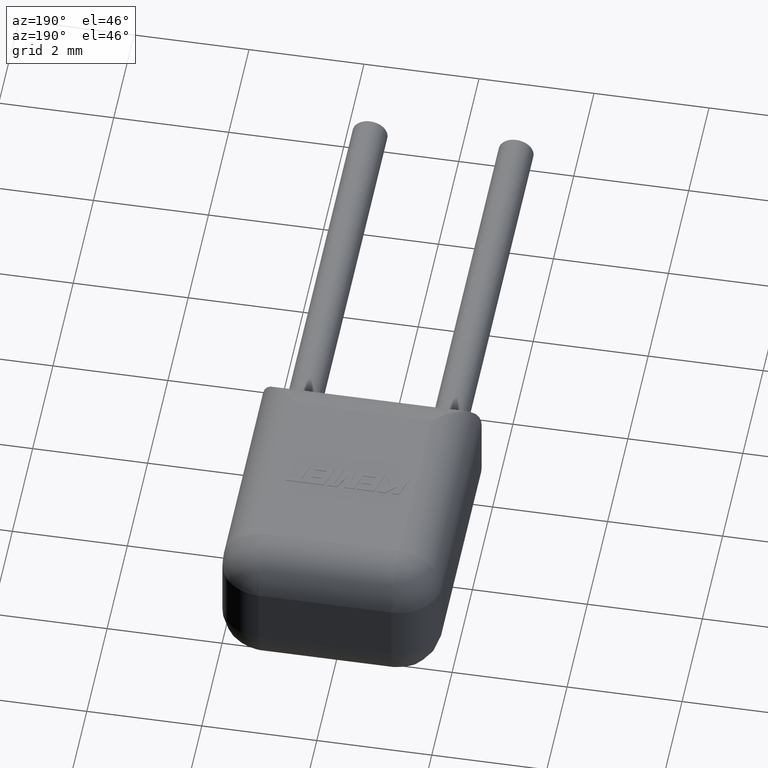
[diagram: clean part render]
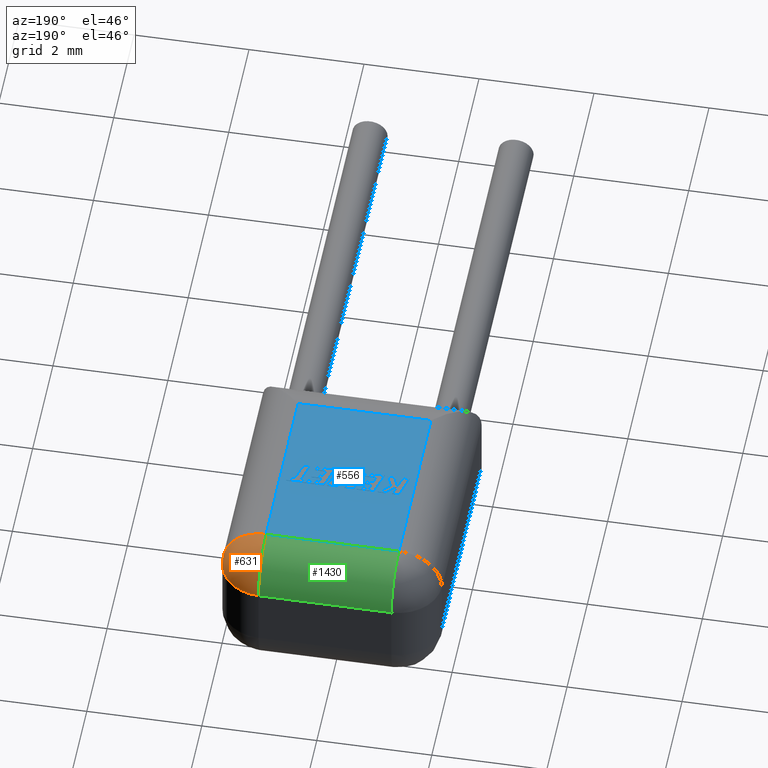
[diagram: same view with three faces highlighted in distinct colors, each labeled with its STEP entity id]
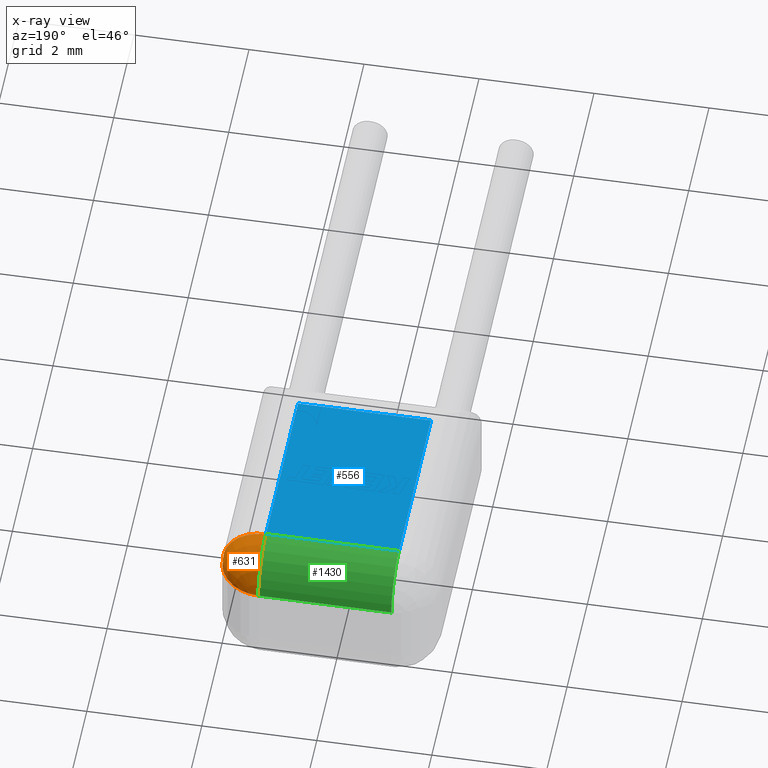
[diagram: x-ray of the same camera — body ghosted, the three highlighted faces saturated]
A machine part, auxiliary view with three faces highlighted in distinct colors.
The next image is the same camera in x-ray (body ghosted, the three faces saturated) — at least one of them is partly hidden behind the body in this view.
Their STEP definitions:

[orange] entity #631 — the highlighted spherical surface has radius 0.75 mm.
#24 = EDGE_LOOP ( 'NONE', ( #2051, #3359, #2685 ) ) ;
#150 = EDGE_CURVE ( 'NONE', #271, #2269, #672, .T. ) ;
#159 = DIRECTION ( 'NONE',  ( -0.0000000000000000000, -1.000000000000000000, -0.0000000000000000000 ) ) ;
#271 = VERTEX_POINT ( 'NONE', #2486 ) ;
#460 = DIRECTION ( 'NONE',  ( 0.0000000000000000000, 0.0000000000000000000, 1.000000000000000000 ) ) ;
#572 = CARTESIAN_POINT ( 'NONE',  ( 7.277648917456348200E-016, 3.910000000000000100, 1.790000000000000000 ) ) ;
#631 = ADVANCED_FACE ( 'NONE', ( #2159 ), #3385, .T. ) ;
#664 = DIRECTION ( 'NONE',  ( 1.000000000000000000, 0.0000000000000000000, 0.0000000000000000000 ) ) ;
#672 = CIRCLE ( 'NONE', #1963, 0.7500000000000000000 ) ;
#1232 = DIRECTION ( 'NONE',  ( 0.0000000000000000000, 1.000000000000000000, 0.0000000000000000000 ) ) ;
#1263 = CARTESIAN_POINT ( 'NONE',  ( -0.7499999999999988900, 3.910000000000000100, 1.790000000000000000 ) ) ;
#1486 = DIRECTION ( 'NONE',  ( 1.000000000000000000, 0.0000000000000000000, 0.0000000000000000000 ) ) ;
#1537 = CARTESIAN_POINT ( 'NONE',  ( -0.7499999999999992200, 3.910000000000000100, 2.540000000000000000 ) ) ;
#1963 = AXIS2_PLACEMENT_3D ( 'NONE', #1263, #2700, #2145 ) ;
#2030 = AXIS2_PLACEMENT_3D ( 'NONE', #2220, #159, #460 ) ;
#2042 = VERTEX_POINT ( 'NONE', #572 ) ;
#2051 = ORIENTED_EDGE ( 'NONE', *, *, #2146, .T. ) ;
#2134 = CARTESIAN_POINT ( 'NONE',  ( -0.7499999999999992200, 3.910000000000000100, 1.790000000000000000 ) ) ;
#2145 = DIRECTION ( 'NONE',  ( 4.336808689942017700E-016, 0.0000000000000000000, -1.000000000000000000 ) ) ;
#2146 = EDGE_CURVE ( 'NONE', #2042, #271, #3214, .T. ) ;
#2159 = FACE_OUTER_BOUND ( 'NONE', #24, .T. ) ;
#2220 = CARTESIAN_POINT ( 'NONE',  ( -0.7499999999999992200, 3.910000000000000100, 1.790000000000000000 ) ) ;
#2269 = VERTEX_POINT ( 'NONE', #1537 ) ;
#2362 = DIRECTION ( 'NONE',  ( 0.0000000000000000000, 0.0000000000000000000, 1.000000000000000000 ) ) ;
#2486 = CARTESIAN_POINT ( 'NONE',  ( -0.7499999999999988900, 4.660000000000000100, 1.790000000000000000 ) ) ;
#2685 = ORIENTED_EDGE ( 'NONE', *, *, #3528, .F. ) ;
#2700 = DIRECTION ( 'NONE',  ( 1.000000000000000000, -0.0000000000000000000, 4.336808689942017200E-016 ) ) ;
#3062 = CIRCLE ( 'NONE', #2030, 0.7500000000000000000 ) ;
#3214 = CIRCLE ( 'NONE', #3373, 0.7500000000000000000 ) ;
#3220 = CARTESIAN_POINT ( 'NONE',  ( -0.7499999999999992200, 3.910000000000000100, 1.790000000000000000 ) ) ;
#3359 = ORIENTED_EDGE ( 'NONE', *, *, #150, .T. ) ;
#3373 = AXIS2_PLACEMENT_3D ( 'NONE', #2134, #2362, #664 ) ;
#3385 = SPHERICAL_SURFACE ( 'NONE', #3502, 0.7500000000000000000 ) ;
#3502 = AXIS2_PLACEMENT_3D ( 'NONE', #3220, #1232, #1486 ) ;
#3528 = EDGE_CURVE ( 'NONE', #2042, #2269, #3062, .T. ) ;

[blue] entity #556 — the highlighted planar face has unit normal (0, 0, -1).
#136 = LINE ( 'NONE', #1112, #541 ) ;
#317 = EDGE_CURVE ( 'NONE', #2269, #2415, #1169, .T. ) ;
#474 = FACE_OUTER_BOUND ( 'NONE', #2770, .T. ) ;
#541 = VECTOR ( 'NONE', #1379, 1000.000000000000000 ) ;
#556 = ADVANCED_FACE ( 'NONE', ( #474 ), #2605, .F. ) ;
#604 = VERTEX_POINT ( 'NONE', #3698 ) ;
#941 = VECTOR ( 'NONE', #2491, 1000.000000000000000 ) ;
#1064 = AXIS2_PLACEMENT_3D ( 'NONE', #2001, #2871, #2896 ) ;
#1112 = CARTESIAN_POINT ( 'NONE',  ( -3.060000000000000100, 0.0000000000000000000, 2.540000000000000000 ) ) ;
#1136 = LINE ( 'NONE', #1873, #3313 ) ;
#1169 = LINE ( 'NONE', #1624, #1265 ) ;
#1265 = VECTOR ( 'NONE', #1868, 1000.000000000000000 ) ;
#1276 = CARTESIAN_POINT ( 'NONE',  ( -3.060000000000000100, 0.7499999999999996700, 2.540000000000000000 ) ) ;
#1375 = CARTESIAN_POINT ( 'NONE',  ( -0.7500000000000000000, 1.395968462427688200E-016, 2.540000000000000000 ) ) ;
#1379 = DIRECTION ( 'NONE',  ( 0.0000000000000000000, -1.000000000000000000, 0.0000000000000000000 ) ) ;
#1537 = CARTESIAN_POINT ( 'NONE',  ( -0.7499999999999992200, 3.910000000000000100, 2.540000000000000000 ) ) ;
#1624 = CARTESIAN_POINT ( 'NONE',  ( 0.0000000000000000000, 3.910000000000000100, 2.540000000000000000 ) ) ;
#1628 = CARTESIAN_POINT ( 'NONE',  ( -3.060000000000000100, 3.910000000000000100, 2.540000000000000000 ) ) ;
#1721 = EDGE_CURVE ( 'NONE', #2769, #604, #1136, .T. ) ;
#1868 = DIRECTION ( 'NONE',  ( -1.000000000000000000, 0.0000000000000000000, 0.0000000000000000000 ) ) ;
#1873 = CARTESIAN_POINT ( 'NONE',  ( -9.184850993605149700E-017, 0.7500000000000000000, 2.540000000000000000 ) ) ;
#1903 = ORIENTED_EDGE ( 'NONE', *, *, #317, .T. ) ;
#2001 = CARTESIAN_POINT ( 'NONE',  ( 0.0000000000000000000, 0.0000000000000000000, 2.540000000000000000 ) ) ;
#2269 = VERTEX_POINT ( 'NONE', #1537 ) ;
#2368 = ORIENTED_EDGE ( 'NONE', *, *, #3600, .T. ) ;
#2415 = VERTEX_POINT ( 'NONE', #1628 ) ;
#2425 = ORIENTED_EDGE ( 'NONE', *, *, #1721, .T. ) ;
#2471 = EDGE_CURVE ( 'NONE', #604, #2269, #3216, .T. ) ;
#2491 = DIRECTION ( 'NONE',  ( 1.861291283236917400E-016, 1.000000000000000000, 0.0000000000000000000 ) ) ;
#2605 = PLANE ( 'NONE',  #1064 ) ;
#2654 = DIRECTION ( 'NONE',  ( 1.000000000000000000, 1.224646799147353200E-016, 0.0000000000000000000 ) ) ;
#2769 = VERTEX_POINT ( 'NONE', #1276 ) ;
#2770 = EDGE_LOOP ( 'NONE', ( #2368, #2425, #3263, #1903 ) ) ;
#2871 = DIRECTION ( 'NONE',  ( 0.0000000000000000000, 0.0000000000000000000, -1.000000000000000000 ) ) ;
#2896 = DIRECTION ( 'NONE',  ( -1.000000000000000000, 0.0000000000000000000, -0.0000000000000000000 ) ) ;
#3216 = LINE ( 'NONE', #1375, #941 ) ;
#3263 = ORIENTED_EDGE ( 'NONE', *, *, #2471, .T. ) ;
#3313 = VECTOR ( 'NONE', #2654, 1000.000000000000000 ) ;
#3600 = EDGE_CURVE ( 'NONE', #2415, #2769, #136, .T. ) ;
#3698 = CARTESIAN_POINT ( 'NONE',  ( -0.7499999999999998900, 0.7499999999999998900, 2.540000000000000000 ) ) ;

[green] entity #1430 — the highlighted cylindrical surface (partial cylindrical patch) has radius 0.75 mm, axis along (-1, 0, 0).
#150 = EDGE_CURVE ( 'NONE', #271, #2269, #672, .T. ) ;
#271 = VERTEX_POINT ( 'NONE', #2486 ) ;
#317 = EDGE_CURVE ( 'NONE', #2269, #2415, #1169, .T. ) ;
#376 = ORIENTED_EDGE ( 'NONE', *, *, #1435, .F. ) ;
#672 = CIRCLE ( 'NONE', #1963, 0.7500000000000000000 ) ;
#748 = AXIS2_PLACEMENT_3D ( 'NONE', #1369, #2821, #1098 ) ;
#1098 = DIRECTION ( 'NONE',  ( 0.0000000000000000000, 0.0000000000000000000, 1.000000000000000000 ) ) ;
#1169 = LINE ( 'NONE', #1624, #1265 ) ;
#1242 = CIRCLE ( 'NONE', #748, 0.7500000000000000000 ) ;
#1263 = CARTESIAN_POINT ( 'NONE',  ( -0.7499999999999988900, 3.910000000000000100, 1.790000000000000000 ) ) ;
#1265 = VECTOR ( 'NONE', #1868, 1000.000000000000000 ) ;
#1369 = CARTESIAN_POINT ( 'NONE',  ( -3.060000000000000100, 3.910000000000000100, 1.790000000000000000 ) ) ;
#1373 = FACE_OUTER_BOUND ( 'NONE', #3672, .T. ) ;
#1430 = ADVANCED_FACE ( 'NONE', ( #1373 ), #3461, .T. ) ;
#1435 = EDGE_CURVE ( 'NONE', #2415, #3404, #1242, .T. ) ;
#1537 = CARTESIAN_POINT ( 'NONE',  ( -0.7499999999999992200, 3.910000000000000100, 2.540000000000000000 ) ) ;
#1624 = CARTESIAN_POINT ( 'NONE',  ( 0.0000000000000000000, 3.910000000000000100, 2.540000000000000000 ) ) ;
#1628 = CARTESIAN_POINT ( 'NONE',  ( -3.060000000000000100, 3.910000000000000100, 2.540000000000000000 ) ) ;
#1868 = DIRECTION ( 'NONE',  ( -1.000000000000000000, 0.0000000000000000000, 0.0000000000000000000 ) ) ;
#1871 = ORIENTED_EDGE ( 'NONE', *, *, #317, .F. ) ;
#1895 = ORIENTED_EDGE ( 'NONE', *, *, #150, .F. ) ;
#1931 = CARTESIAN_POINT ( 'NONE',  ( 0.0000000000000000000, 3.910000000000000100, 1.790000000000000000 ) ) ;
#1963 = AXIS2_PLACEMENT_3D ( 'NONE', #1263, #2700, #2145 ) ;
#2145 = DIRECTION ( 'NONE',  ( 4.336808689942017700E-016, 0.0000000000000000000, -1.000000000000000000 ) ) ;
#2269 = VERTEX_POINT ( 'NONE', #1537 ) ;
#2415 = VERTEX_POINT ( 'NONE', #1628 ) ;
#2455 = VECTOR ( 'NONE', #2778, 1000.000000000000000 ) ;
#2486 = CARTESIAN_POINT ( 'NONE',  ( -0.7499999999999988900, 4.660000000000000100, 1.790000000000000000 ) ) ;
#2521 = DIRECTION ( 'NONE',  ( -1.000000000000000000, 0.0000000000000000000, 0.0000000000000000000 ) ) ;
#2700 = DIRECTION ( 'NONE',  ( 1.000000000000000000, -0.0000000000000000000, 4.336808689942017200E-016 ) ) ;
#2778 = DIRECTION ( 'NONE',  ( 1.000000000000000000, -0.0000000000000000000, -0.0000000000000000000 ) ) ;
#2821 = DIRECTION ( 'NONE',  ( -1.000000000000000000, 0.0000000000000000000, 0.0000000000000000000 ) ) ;
#2950 = LINE ( 'NONE', #3033, #2455 ) ;
#3033 = CARTESIAN_POINT ( 'NONE',  ( -3.810000000000000100, 4.660000000000000100, 1.790000000000000000 ) ) ;
#3280 = ORIENTED_EDGE ( 'NONE', *, *, #3460, .F. ) ;
#3404 = VERTEX_POINT ( 'NONE', #3515 ) ;
#3460 = EDGE_CURVE ( 'NONE', #3404, #271, #2950, .T. ) ;
#3461 = CYLINDRICAL_SURFACE ( 'NONE', #3656, 0.7500000000000000000 ) ;
#3515 = CARTESIAN_POINT ( 'NONE',  ( -3.060000000000000100, 4.660000000000000100, 1.790000000000000000 ) ) ;
#3651 = DIRECTION ( 'NONE',  ( 0.0000000000000000000, 0.0000000000000000000, 1.000000000000000000 ) ) ;
#3656 = AXIS2_PLACEMENT_3D ( 'NONE', #1931, #2521, #3651 ) ;
#3672 = EDGE_LOOP ( 'NONE', ( #1895, #3280, #376, #1871 ) ) ;